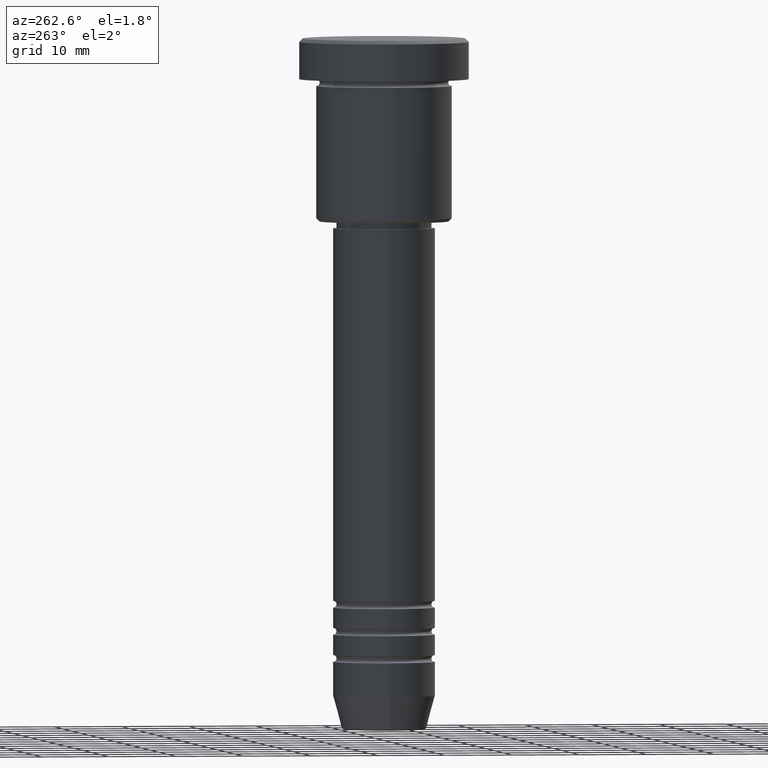
[diagram: clean part render]
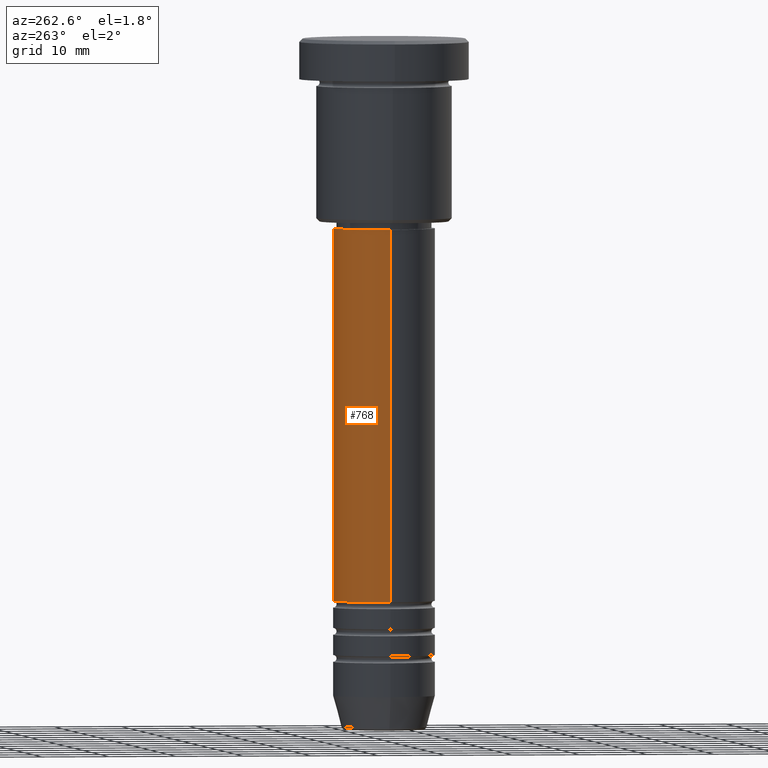
[diagram: same view with one face highlighted and labeled with its STEP entity id]
A machine part, auxiliary view. The second image highlights one B-rep face of the part: STEP entity #768.
In plain terms, the highlighted cylindrical surface (partial cylindrical patch) has radius 7.5 mm, axis along (-0, -0, 1).
Its self-contained STEP definition (entity closure, byte-faithful):
#58 = DIRECTION ( 'NONE',  ( 1.000000000000000000, 0.000000000000000000, 0.000000000000000000 ) ) ;
#63 = DIRECTION ( 'NONE',  ( -0.000000000000000000, -0.000000000000000000, 1.000000000000000000 ) ) ;
#73 = EDGE_CURVE ( 'NONE', #348, #940, #313, .T. ) ;
#81 = DIRECTION ( 'NONE',  ( 1.000000000000000000, 0.000000000000000000, 0.000000000000000000 ) ) ;
#139 = VECTOR ( 'NONE', #63, 1000.000000000000000 ) ;
#141 = VECTOR ( 'NONE', #964, 1000.000000000000000 ) ;
#181 = EDGE_CURVE ( 'NONE', #940, #615, #1139, .T. ) ;
#235 = CARTESIAN_POINT ( 'NONE',  ( 7.500000000000000000, 0.000000000000000000, 0.000000000000000000 ) ) ;
#238 = CARTESIAN_POINT ( 'NONE',  ( 0.000000000000000000, 0.000000000000000000, -27.99999999999998934 ) ) ;
#244 = CYLINDRICAL_SURFACE ( 'NONE', #1133, 7.500000000000000000 ) ;
#258 = DIRECTION ( 'NONE',  ( 1.000000000000000000, 0.000000000000000000, 0.000000000000000000 ) ) ;
#280 = CARTESIAN_POINT ( 'NONE',  ( -7.500000000000000000, 9.184850993605147944E-16, -27.99999999999998934 ) ) ;
#313 = CIRCLE ( 'NONE', #514, 7.500000000000000888 ) ;
#334 = EDGE_CURVE ( 'NONE', #655, #615, #973, .T. ) ;
#348 = VERTEX_POINT ( 'NONE', #541 ) ;
#514 = AXIS2_PLACEMENT_3D ( 'NONE', #889, #806, #258 ) ;
#528 = ORIENTED_EDGE ( 'NONE', *, *, #181, .T. ) ;
#541 = CARTESIAN_POINT ( 'NONE',  ( 7.500000000000000888, 0.000000000000000000, -82.99999999999988631 ) ) ;
#553 = ORIENTED_EDGE ( 'NONE', *, *, #73, .T. ) ;
#602 = DIRECTION ( 'NONE',  ( -0.000000000000000000, -0.000000000000000000, 1.000000000000000000 ) ) ;
#609 = CARTESIAN_POINT ( 'NONE',  ( 0.000000000000000000, 0.000000000000000000, 0.000000000000000000 ) ) ;
#615 = VERTEX_POINT ( 'NONE', #280 ) ;
#636 = ORIENTED_EDGE ( 'NONE', *, *, #334, .F. ) ;
#655 = VERTEX_POINT ( 'NONE', #686 ) ;
#686 = CARTESIAN_POINT ( 'NONE',  ( 7.500000000000000000, 0.000000000000000000, -27.99999999999998934 ) ) ;
#768 = ADVANCED_FACE ( 'NONE', ( #773 ), #244, .T. ) ;
#773 = FACE_OUTER_BOUND ( 'NONE', #974, .T. ) ;
#785 = AXIS2_PLACEMENT_3D ( 'NONE', #238, #602, #81 ) ;
#788 = EDGE_CURVE ( 'NONE', #348, #655, #1055, .T. ) ;
#806 = DIRECTION ( 'NONE',  ( -0.000000000000000000, -0.000000000000000000, 1.000000000000000000 ) ) ;
#854 = CARTESIAN_POINT ( 'NONE',  ( -7.500000000000001776, 9.184850993605149917E-16, -82.99999999999988631 ) ) ;
#889 = CARTESIAN_POINT ( 'NONE',  ( 0.000000000000000000, 0.000000000000000000, -82.99999999999988631 ) ) ;
#920 = ORIENTED_EDGE ( 'NONE', *, *, #788, .F. ) ;
#940 = VERTEX_POINT ( 'NONE', #854 ) ;
#964 = DIRECTION ( 'NONE',  ( -0.000000000000000000, -0.000000000000000000, 1.000000000000000000 ) ) ;
#967 = CARTESIAN_POINT ( 'NONE',  ( -7.500000000000000000, 9.184850993605147944E-16, 0.000000000000000000 ) ) ;
#973 = CIRCLE ( 'NONE', #785, 7.500000000000000000 ) ;
#974 = EDGE_LOOP ( 'NONE', ( #553, #528, #636, #920 ) ) ;
#1055 = LINE ( 'NONE', #235, #141 ) ;
#1133 = AXIS2_PLACEMENT_3D ( 'NONE', #609, #1144, #58 ) ;
#1139 = LINE ( 'NONE', #967, #139 ) ;
#1144 = DIRECTION ( 'NONE',  ( -0.000000000000000000, -0.000000000000000000, 1.000000000000000000 ) ) ;